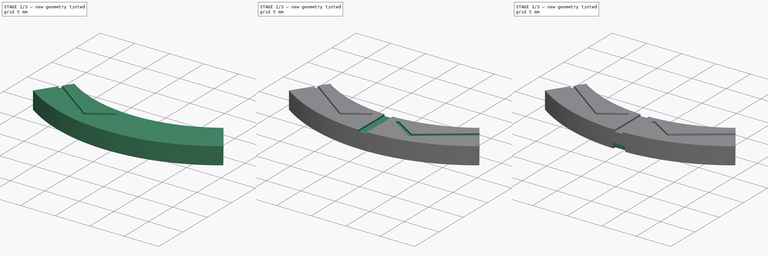
[diagram: build sequence overview — one tinted view per stage of 3, left to right]
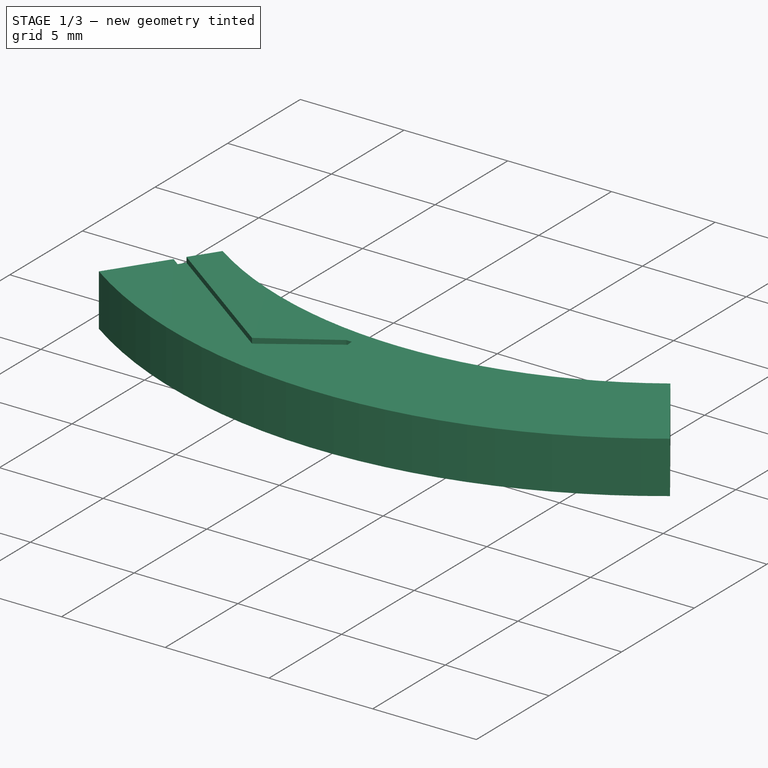
[diagram: stage 1 of 3 — iso view after this stage's code; geometry added in this stage tinted green]
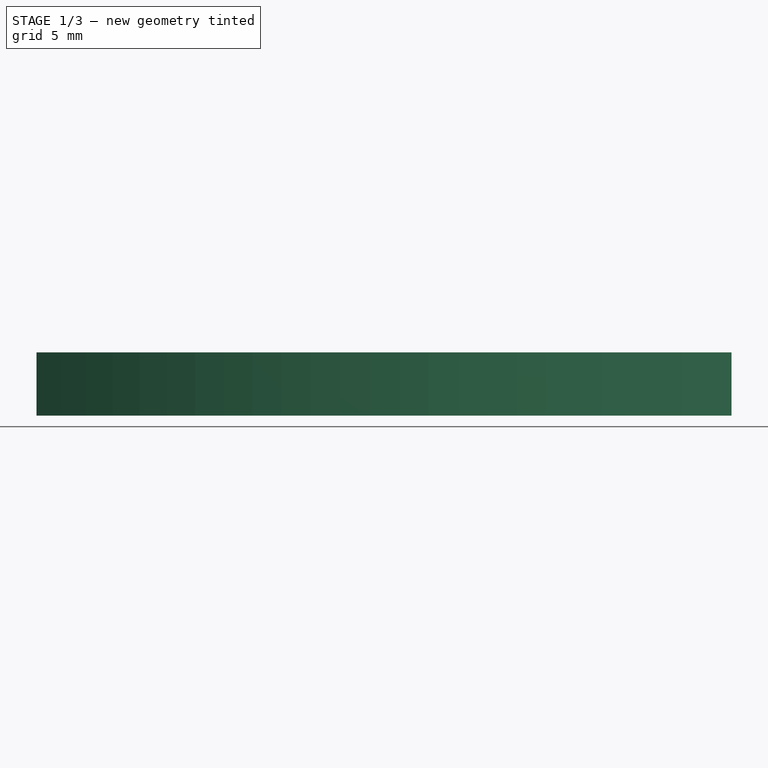
[diagram: stage 1 of 3 — front view after this stage's code; geometry added in this stage tinted green]
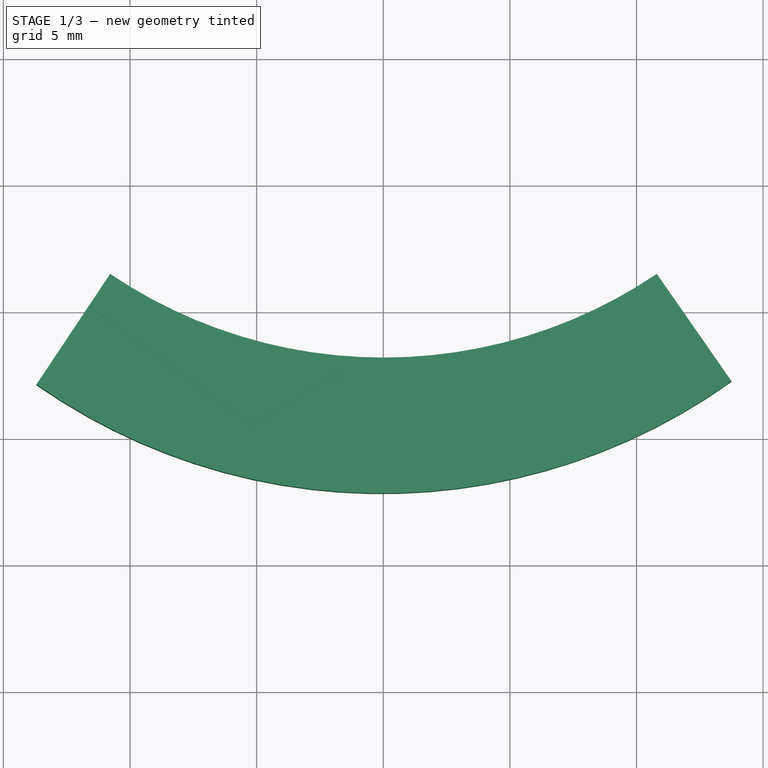
[diagram: stage 1 of 3 — top view after this stage's code; geometry added in this stage tinted green]
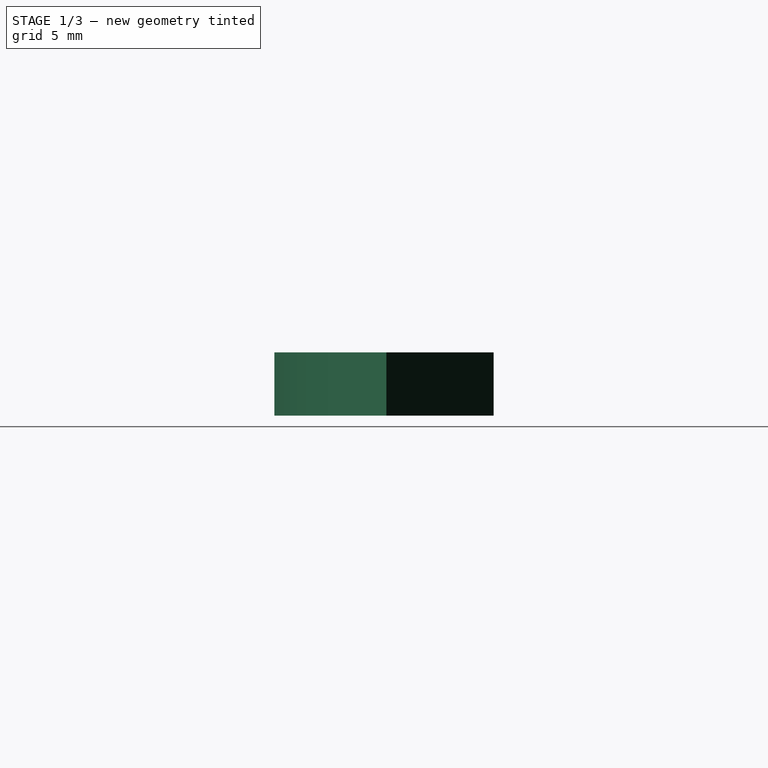
[diagram: stage 1 of 3 — right view after this stage's code; geometry added in this stage tinted green]
FCSTD DOCUMENT  (FreeCAD 0.20R29410 (Git))
Label: Ex._gard
License: All rights reserved
LicenseURL: http://en.wikipedia.org/wiki/All_rights_reserved
objects: Sketcher::SketchObject×7, PartDesign::Pocket×5, Image::ImagePlane×1, PartDesign::Pad×1, PartDesign::Body×1
note: 20 computed .brp shape members not serialized (recipe doc carries the construction recipe); baked Part::Feature solids carry a one-line shape summary decoded from their .brp

FEATURE [Image::ImagePlane] ImagePlane
  Placement = pos=(17.5565,0,0) rot=(0,0,1;0rad)
  XSize = 123.545
  YSize = 150.529
FEATURE [Sketcher::SketchObject] Sketch
  FullyConstrained = false
  MapMode = 5
  Support = -> [XY_Plane]
  sketch-geometry (4):
    g0: LineSegment StartX=-13.6909 StartY=-42.8744 StartZ=0 EndX=-10.784 EndY=-38.5128 EndZ=0
    g1: LineSegment StartX=10.8033 StartY=-38.5124 StartZ=0 EndX=13.7513 EndY=-42.7451 EndZ=0
    g2: ArcOfCircle CenterX=0.00936443 CenterY=-22.5407 CenterZ=0 NormalX=0 NormalY=0 NormalZ=1 AngleXU=0 Radius=19.2771 StartAngle=4.11811 EndAngle=5.3067
    g3: ArcOfCircle CenterX=-0.061218 CenterY=-23.4155 CenterZ=0 NormalX=0 NormalY=0 NormalZ=1 AngleXU=0 Radius=23.7575 StartAngle=4.10137 EndAngle=5.33283
  constraints (4):
    c: Coincident(g2,g1)
    c: Coincident(g2,g0)
    c: Coincident(g3,g0)
    c: Coincident(g3,g1)
FEATURE [PartDesign::Pad] Pad
  Direction = (0,0,1)
  Length = 2.5
  Length2 = 10
  Profile = -> Sketch
  ReferenceAxis = -> Sketch [N_Axis]
  Type = 0
FEATURE [Sketcher::SketchObject] Sketch001
  FullyConstrained = false
  MapMode = 5
  Placement = pos=(0,0,2.5) rot=(0,0,1;0rad)
  Support = -> [Pad]
  sketch-geometry (7):
    g0: LineSegment StartX=-12.4088 StartY=-39.8887 StartZ=0 EndX=-5.23677 EndY=-45.1867 EndZ=0
    g1: LineSegment StartX=-5.23677 StartY=-45.1867 StartZ=0 EndX=-1.71352 EndY=-42.8547 EndZ=0
    g2: LineSegment StartX=-1.71352 StartY=-42.8547 StartZ=0 EndX=-1.7424 EndY=-42.5298 EndZ=0
    g3: LineSegment StartX=-1.7424 StartY=-42.5298 StartZ=0 EndX=-2.00953 EndY=-42.5298 EndZ=0
    g4: LineSegment StartX=-2.00953 StartY=-42.5298 StartZ=0 EndX=-5.173 EndY=-44.4965 EndZ=0
    g5: LineSegment StartX=-5.173 StartY=-44.4965 StartZ=0 EndX=-12.0434 EndY=-39.4858 EndZ=0
    g6: LineSegment StartX=-12.4088 StartY=-39.8887 StartZ=0 EndX=-12.0434 EndY=-39.4858 EndZ=0
  constraints (8):
    c: Coincident(g1,g0)
    c: Coincident(g2,g1)
    c: Coincident(g3,g2)
    c: Horizontal(g3)
    c: Coincident(g4,g3)
    c: Coincident(g5,g4)
    c: Coincident(g6,g0)
    c: Coincident(g6,g5)
FEATURE [Sketcher::SketchObject] Sketch002
  FullyConstrained = true
  MapMode = 5
  Placement = pos=(0,0,2.5) rot=(0,0,1;0rad)
FEATURE [PartDesign::Pocket] Pocket
  BaseFeature = -> Pad
  Direction = (0,0,-1)
  Length = 0.25
  Length2 = 5
  Profile = -> Sketch001
  ReferenceAxis = -> Sketch001 [N_Axis]
  Type = 0
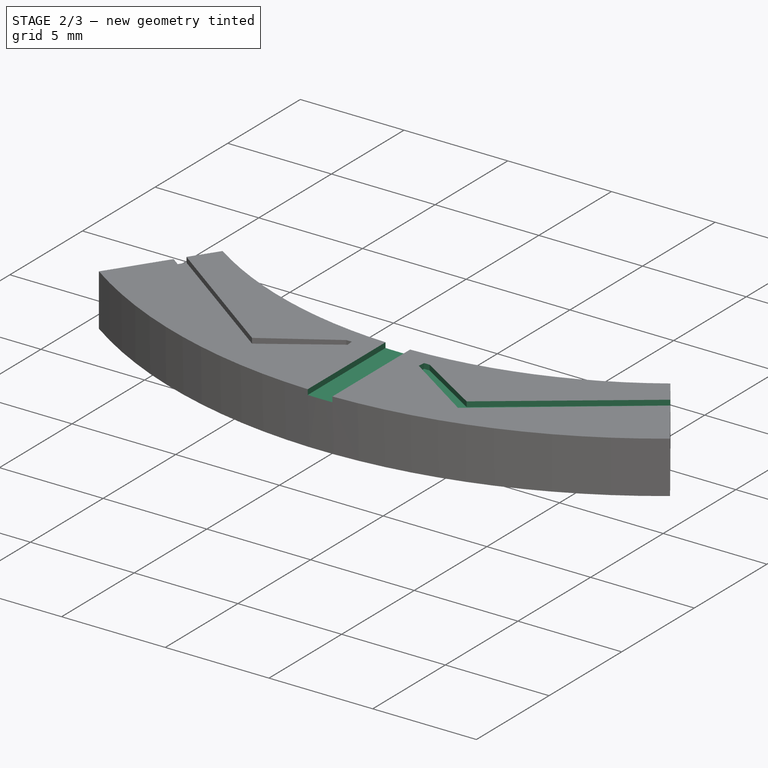
[diagram: stage 2 of 3 — iso view after this stage's code; geometry added in this stage tinted green]
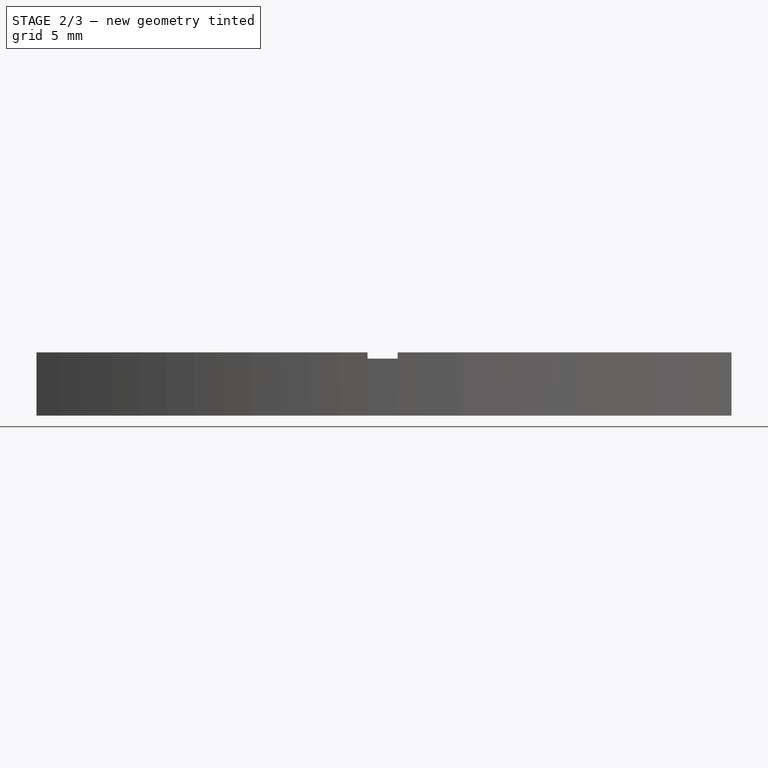
[diagram: stage 2 of 3 — front view after this stage's code; geometry added in this stage tinted green]
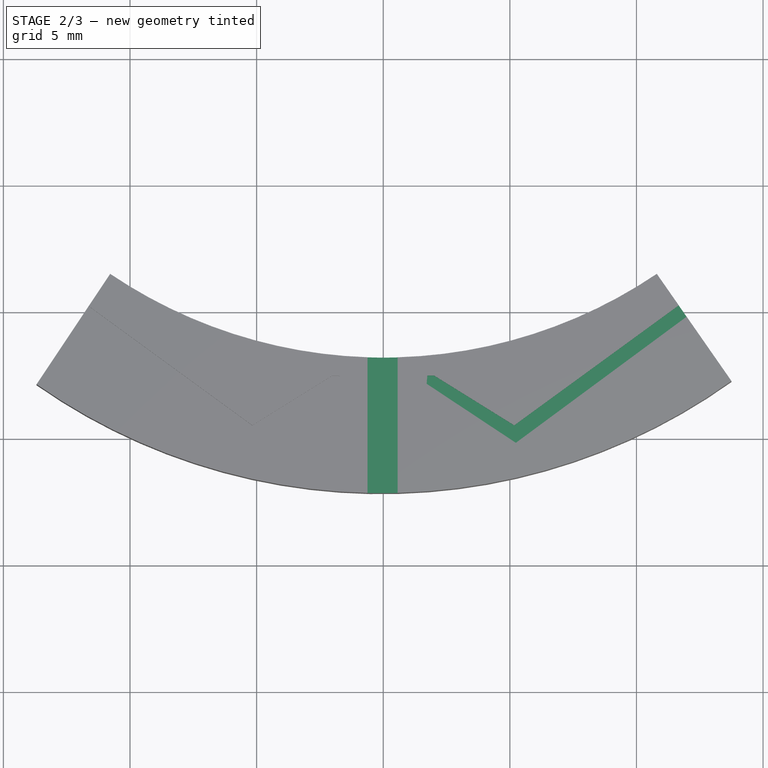
[diagram: stage 2 of 3 — top view after this stage's code; geometry added in this stage tinted green]
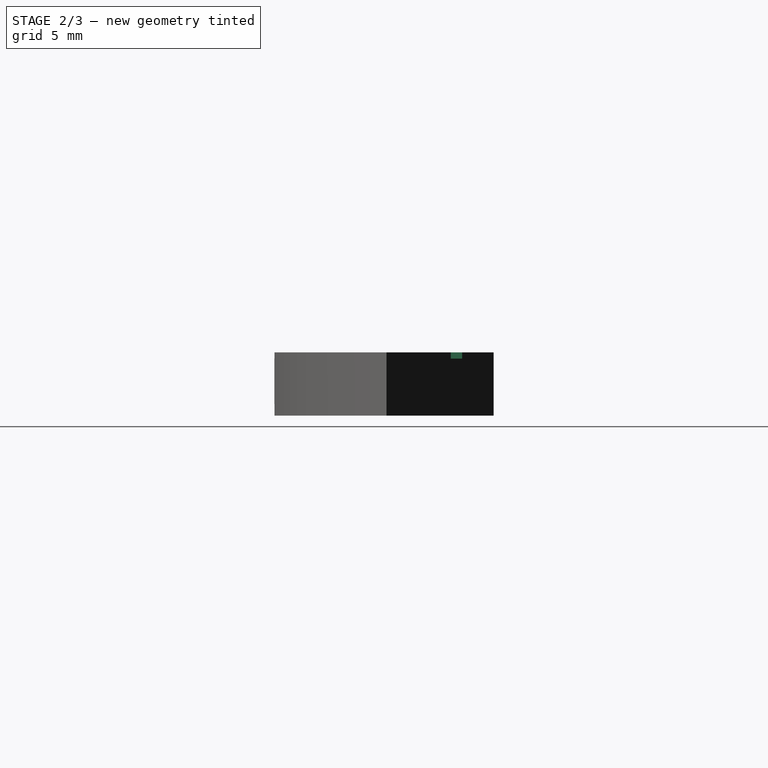
[diagram: stage 2 of 3 — right view after this stage's code; geometry added in this stage tinted green]
FEATURE [Sketcher::SketchObject] MirroredSketch
  FullyConstrained = false
  Placement = pos=(0,0,2.5) rot=(0,0,1;0rad)
  sketch-geometry (7):
    g0: LineSegment StartX=12.4088 StartY=-39.8887 StartZ=0 EndX=5.23677 EndY=-45.1867 EndZ=0
    g1: LineSegment StartX=5.23677 StartY=-45.1867 StartZ=0 EndX=1.71352 EndY=-42.8547 EndZ=0
    g2: LineSegment StartX=1.71352 StartY=-42.8547 StartZ=0 EndX=1.7424 EndY=-42.5298 EndZ=0
    g3: LineSegment StartX=1.7424 StartY=-42.5298 StartZ=0 EndX=2.00953 EndY=-42.5298 EndZ=0
    g4: LineSegment StartX=2.00953 StartY=-42.5298 StartZ=0 EndX=5.173 EndY=-44.4965 EndZ=0
    g5: LineSegment StartX=5.173 StartY=-44.4965 StartZ=0 EndX=12.0434 EndY=-39.4858 EndZ=0
    g6: LineSegment StartX=12.4088 StartY=-39.8887 StartZ=0 EndX=12.0434 EndY=-39.4858 EndZ=0
  constraints (8):
    c: Coincident(g1,g0)
    c: Coincident(g2,g1)
    c: Coincident(g3,g2)
    c: Horizontal(g3)
    c: Coincident(g4,g3)
    c: Coincident(g5,g4)
    c: Coincident(g6,g0)
    c: Coincident(g6,g5)
FEATURE [PartDesign::Pocket] Pocket001
  BaseFeature = -> Pocket
  Direction = (0,0,-1)
  Length = 0.25
  Length2 = 5
  Profile = -> MirroredSketch
  ReferenceAxis = -> MirroredSketch [N_Axis]
  Type = 0
FEATURE [Sketcher::SketchObject] Sketch003
  FullyConstrained = false
  MapMode = 5
  Placement = pos=(0,0,2.5) rot=(0,0,1;0rad)
  Support = -> [Pocket001]
  sketch-geometry (4):
    g0: LineSegment StartX=-0.61963 StartY=-41.1166 StartZ=0 EndX=0.566484 EndY=-41.1166 EndZ=0
    g1: LineSegment StartX=0.566484 StartY=-41.1166 StartZ=0 EndX=0.566484 EndY=-47.5216 EndZ=0
    g2: LineSegment StartX=0.566484 StartY=-47.5216 StartZ=0 EndX=-0.61963 EndY=-47.5216 EndZ=0
    g3: LineSegment StartX=-0.61963 StartY=-47.5216 StartZ=0 EndX=-0.61963 EndY=-41.1166 EndZ=0
  constraints (8):
    c: Coincident(g0,g1)
    c: Coincident(g1,g2)
    c: Coincident(g2,g3)
    c: Coincident(g3,g0)
    c: Horizontal(g0)
    c: Horizontal(g2)
    c: Vertical(g1)
    c: Vertical(g3)
FEATURE [PartDesign::Pocket] Pocket002
  BaseFeature = -> Pocket001
  Direction = (0,0,-1)
  Length = 0.25
  Length2 = 5
  Profile = -> Sketch003
  ReferenceAxis = -> Sketch003 [N_Axis]
  Type = 0
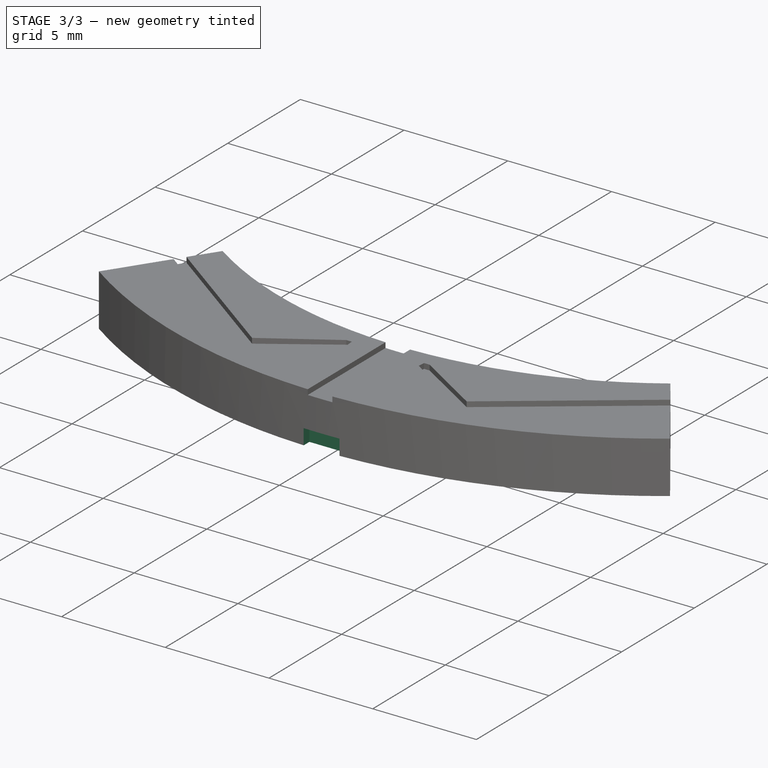
[diagram: stage 3 of 3 — iso view after this stage's code; geometry added in this stage tinted green]
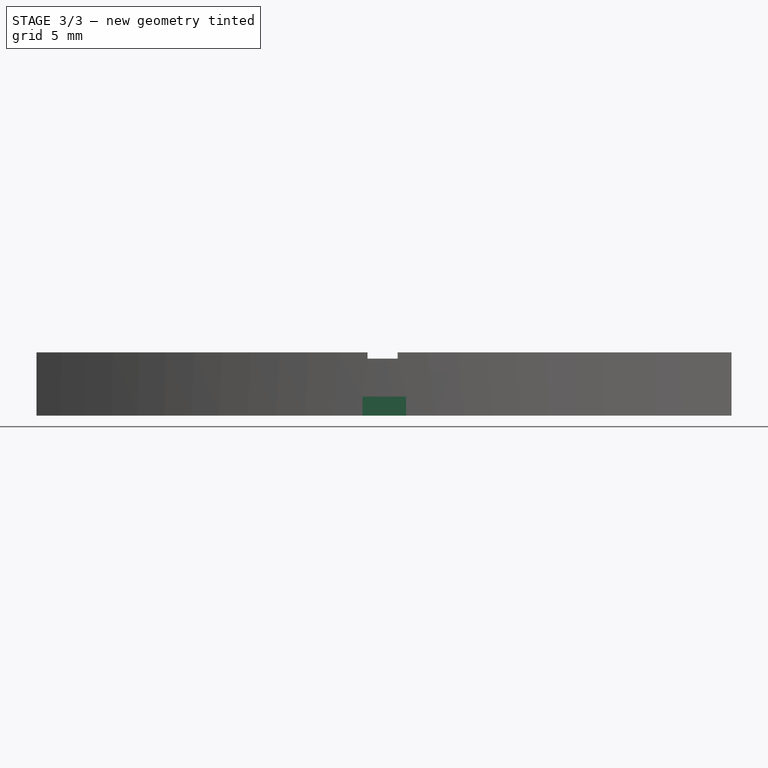
[diagram: stage 3 of 3 — front view after this stage's code; geometry added in this stage tinted green]
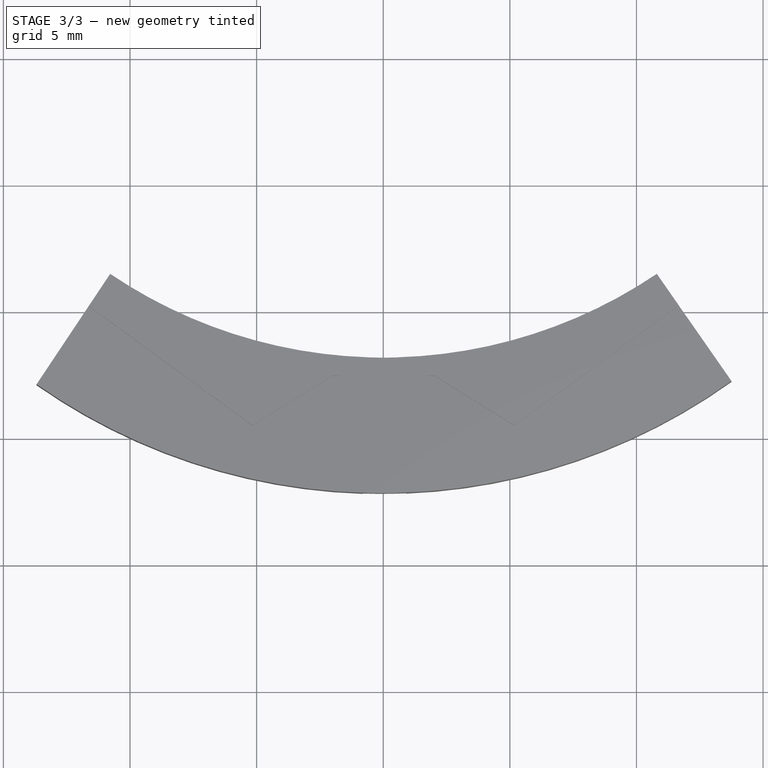
[diagram: stage 3 of 3 — top view after this stage's code; geometry added in this stage tinted green]
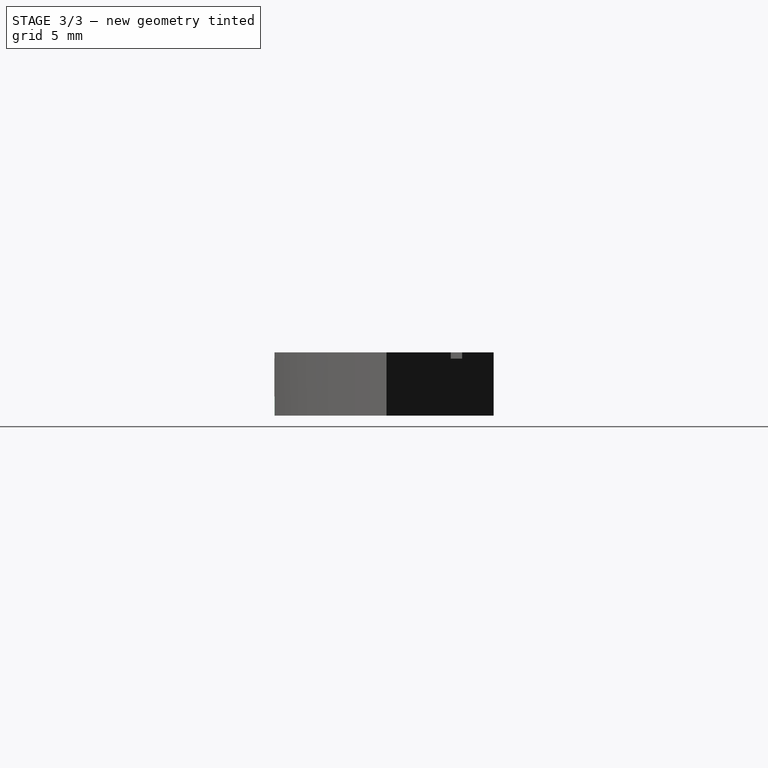
[diagram: stage 3 of 3 — right view after this stage's code; geometry added in this stage tinted green]
FEATURE [Sketcher::SketchObject] Sketch004
  FullyConstrained = false
  MapMode = 5
  Placement = pos=(0,0,0) rot=(1,0,0;3.14159rad)
  Support = -> [Pocket002]
  sketch-geometry (4):
    g0: LineSegment StartX=-0.818867 StartY=47.3676 StartZ=0 EndX=0.906332 EndY=47.3676 EndZ=0
    g1: LineSegment StartX=0.906332 StartY=47.3676 StartZ=0 EndX=0.906332 EndY=46.7651 EndZ=0
    g2: LineSegment StartX=0.906332 StartY=46.7651 StartZ=0 EndX=-0.818867 EndY=46.7651 EndZ=0
    g3: LineSegment StartX=-0.818867 StartY=46.7651 StartZ=0 EndX=-0.818867 EndY=47.3676 EndZ=0
  constraints (8):
    c: Coincident(g0,g1)
    c: Coincident(g1,g2)
    c: Coincident(g2,g3)
    c: Coincident(g3,g0)
    c: Horizontal(g0)
    c: Horizontal(g2)
    c: Vertical(g1)
    c: Vertical(g3)
FEATURE [PartDesign::Pocket] Pocket003
  BaseFeature = -> Pocket002
  Direction = (0,0,1)
  Length = 0.75
  Length2 = 5
  Profile = -> Sketch004
  ReferenceAxis = -> Sketch004 [N_Axis]
  Type = 0
FEATURE [Sketcher::SketchObject] Sketch005
  FullyConstrained = false
  MapMode = 5
  Placement = pos=(0,0,0) rot=(1,0,0;3.14159rad)
  Support = -> [Pocket003]
  sketch-geometry (4):
    g0: LineSegment StartX=-2.17613 StartY=42.4122 StartZ=0 EndX=2.56199 EndY=42.4122 EndZ=0
    g1: LineSegment StartX=2.56199 StartY=42.4122 StartZ=0 EndX=2.56199 EndY=41.3593 EndZ=0
    g2: LineSegment StartX=2.56199 StartY=41.3593 StartZ=0 EndX=-2.17613 EndY=41.3593 EndZ=0
    g3: LineSegment StartX=-2.17613 StartY=41.3593 StartZ=0 EndX=-2.17613 EndY=42.4122 EndZ=0
  constraints (8):
    c: Coincident(g0,g1)
    c: Coincident(g1,g2)
    c: Coincident(g2,g3)
    c: Coincident(g3,g0)
    c: Horizontal(g0)
    c: Horizontal(g2)
    c: Vertical(g1)
    c: Vertical(g3)
FEATURE [PartDesign::Pocket] Pocket004
  BaseFeature = -> Pocket003
  Direction = (0,0,1)
  Length = 0.75
  Length2 = 5
  Profile = -> Sketch005
  ReferenceAxis = -> Sketch005 [N_Axis]
  Type = 0
FEATURE [PartDesign::Body] Body
  Group = -> [Sketch,Pad,Sketch001,Sketch002,Pocket,MirroredSketch,Pocket001,Sketch003,Pocket002,Sketch004,Pocket003,Sketch005,Pocket004]
  Origin = -> Origin
  Tip = -> Pocket004
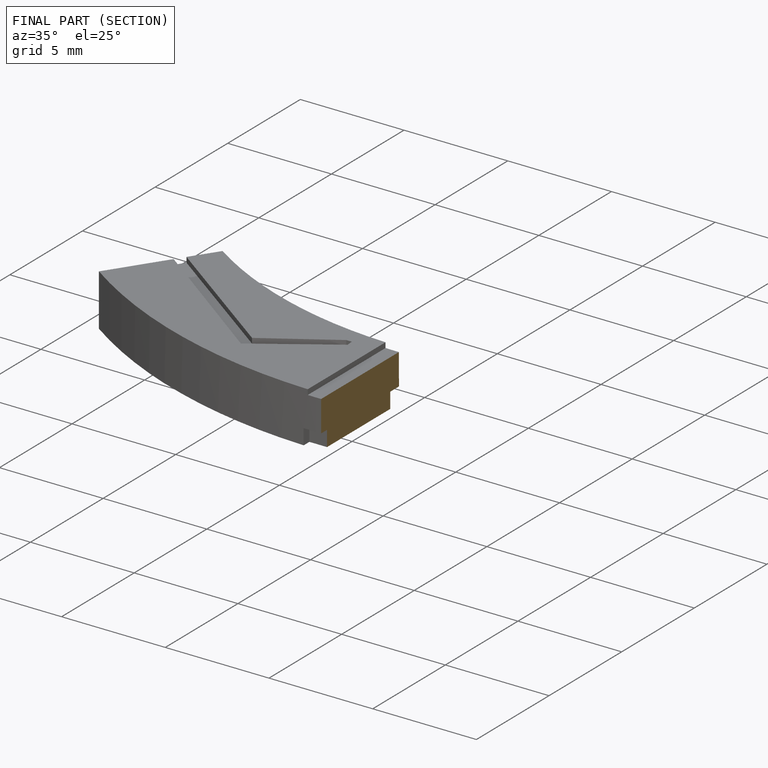
[diagram: finished part — half-section view (interior)]
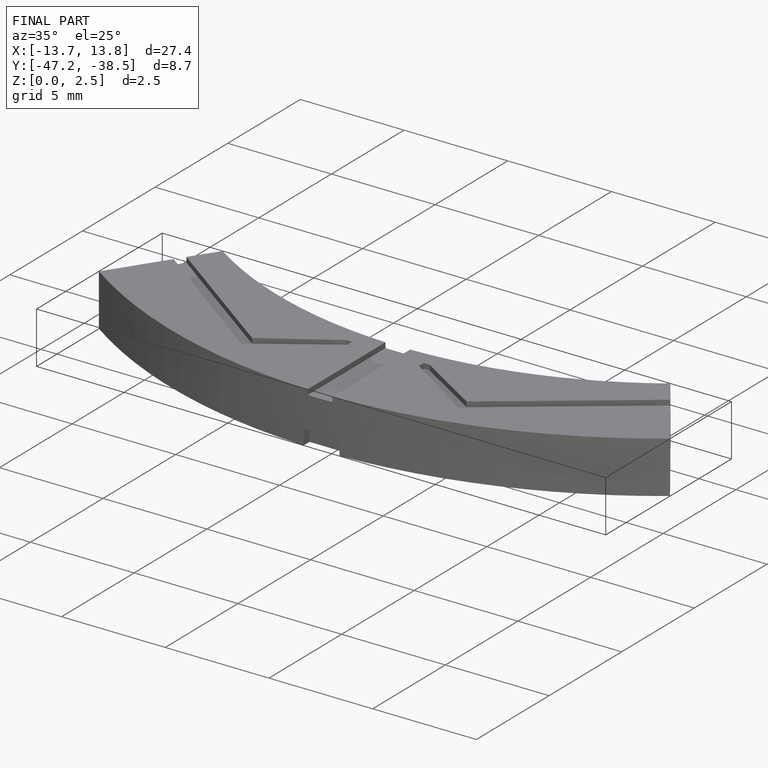
[diagram: finished part — iso view with bounding-box wireframe]
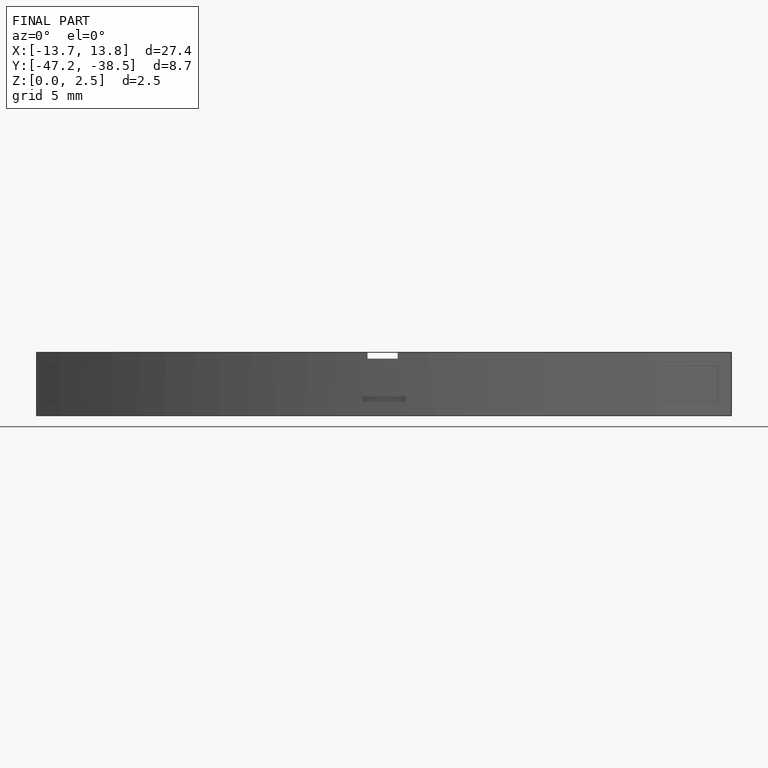
[diagram: finished part — front view with bounding-box wireframe]
